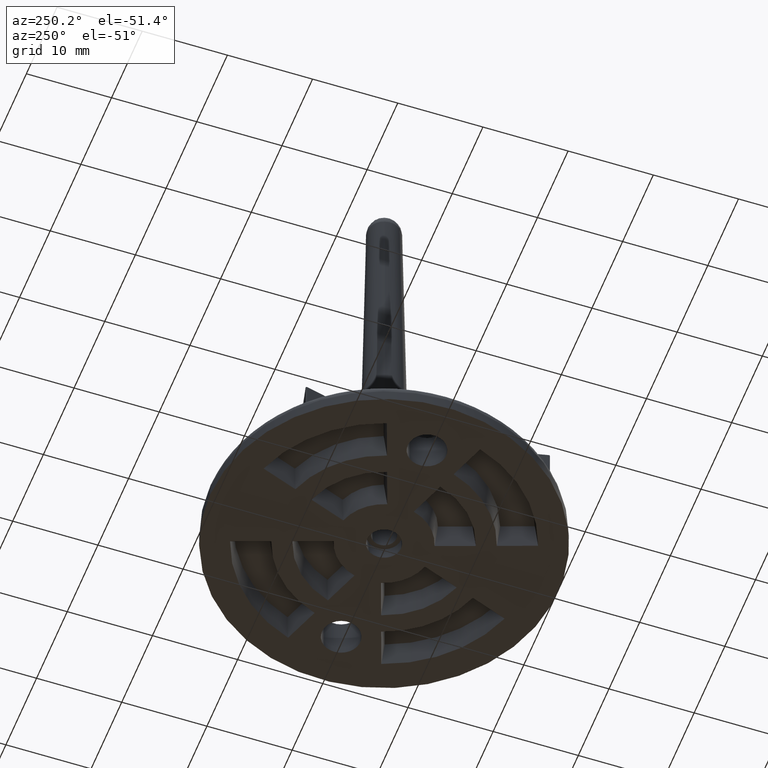
[diagram: clean part render]
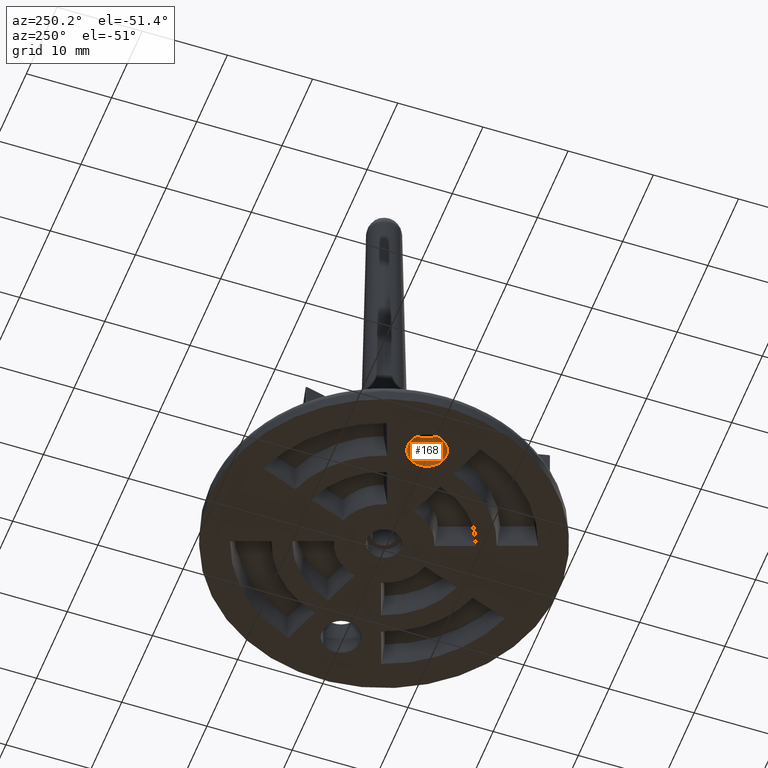
[diagram: same view with one face highlighted and labeled with its STEP entity id]
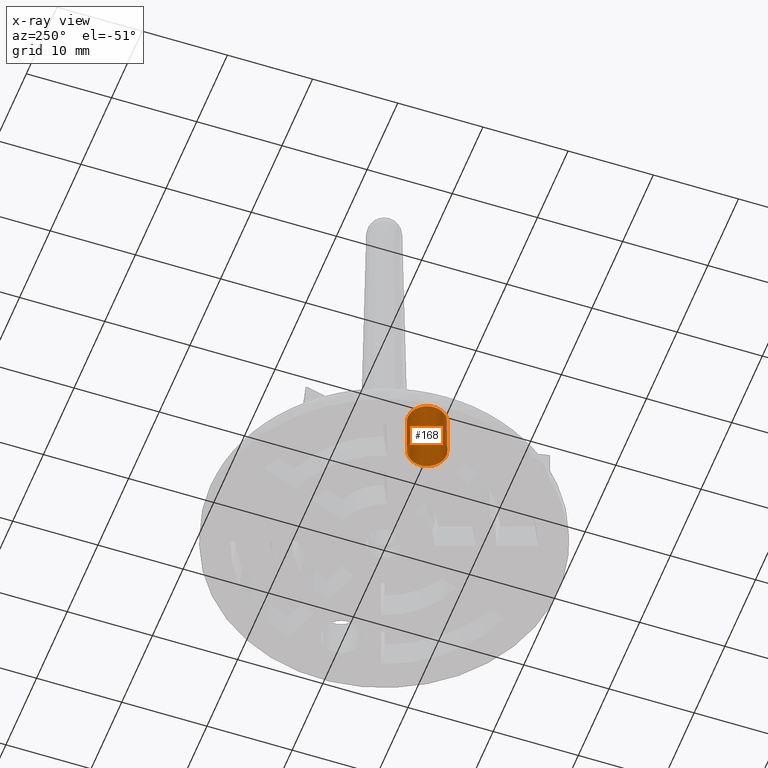
[diagram: x-ray of the same camera — body ghosted, the highlighted face saturated]
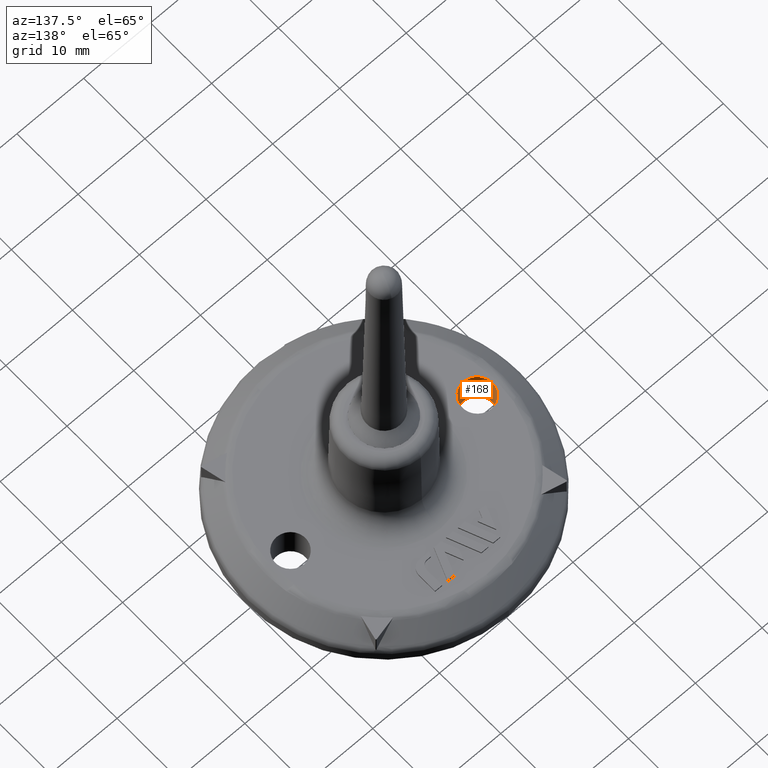
[diagram: same view with one face highlighted and labeled with its STEP entity id]
A machine part, auxiliary view. The second image highlights one B-rep face of the part: STEP entity #168.
The next image is the same camera in x-ray: the body ghosted, the highlighted face saturated — about 0% of this face is hidden behind the body in this view.
A second angle (auxiliary view) of the same face is appended — the face is thin or edge-on in the first view.
In plain terms, the highlighted cylindrical surface (bore or boss wall) has radius 2.25 mm, axis along (-0, 0, 1).
Its self-contained STEP definition (entity closure, byte-faithful):
#168 = ADVANCED_FACE( '', ( #342, #343 ), #344, .F. );
#342 = FACE_OUTER_BOUND( '', #618, .T. );
#343 = FACE_OUTER_BOUND( '', #619, .T. );
#344 = CYLINDRICAL_SURFACE( '', #620, 2.25000000000000 );
#618 = EDGE_LOOP( '', ( #1151 ) );
#619 = EDGE_LOOP( '', ( #1152 ) );
#620 = AXIS2_PLACEMENT_3D( '', #1153, #1154, #1155 );
#1151 = ORIENTED_EDGE( '', *, *, #1845, .F. );
#1152 = ORIENTED_EDGE( '', *, *, #1693, .T. );
#1153 = CARTESIAN_POINT( '', ( -14.0000000000000, 6.42906561168512E-015, 34.9993590001010 ) );
#1154 = DIRECTION( '', ( -1.12474554136660E-032, 1.83690953073357E-016, 1.00000000000000 ) );
#1155 = DIRECTION( '', ( -1.00000000000000, -3.03858167864314E-064, -1.12474554136660E-032 ) );
#1693 = EDGE_CURVE( '', #1973, #1973, #1974, .F. );
#1845 = EDGE_CURVE( '', #2237, #2237, #2238, .T. );
#1973 = VERTEX_POINT( '', #2433 );
#1974 = CIRCLE( '', #2434, 2.25000000000000 );
#2237 = VERTEX_POINT( '', #2904 );
#2238 = CIRCLE( '', #2905, 2.25000000000000 );
#2433 = CARTESIAN_POINT( '', ( -14.0000000000000, 2.25000000000000, 4.99990699999999 ) );
#2434 = AXIS2_PLACEMENT_3D( '', #3200, #3201, #3202 );
#2904 = CARTESIAN_POINT( '', ( -11.7500000000000, -9.18435845238954E-022, -4.99989699989656E-006 ) );
#2905 = AXIS2_PLACEMENT_3D( '', #3395, #3396, #3397 );
#3200 = CARTESIAN_POINT( '', ( -14.0000000000000, 9.18437682108146E-016, 4.99990699999999 ) );
#3201 = DIRECTION( '', ( 1.12474554136660E-032, -1.83690953073357E-016, -1.00000000000000 ) );
#3202 = DIRECTION( '', ( 0.000000000000000, 1.00000000000000, -1.83690953073357E-016 ) );
#3395 = CARTESIAN_POINT( '', ( -14.0000000000000, -9.18435845238954E-022, -4.99989699989656E-006 ) );
#3396 = DIRECTION( '', ( -1.12474554136660E-032, -1.26466724719837E-022, 1.00000000000000 ) );
#3397 = DIRECTION( '', ( 1.00000000000000, 4.75158170683057E-048, 1.12474554136660E-032 ) );